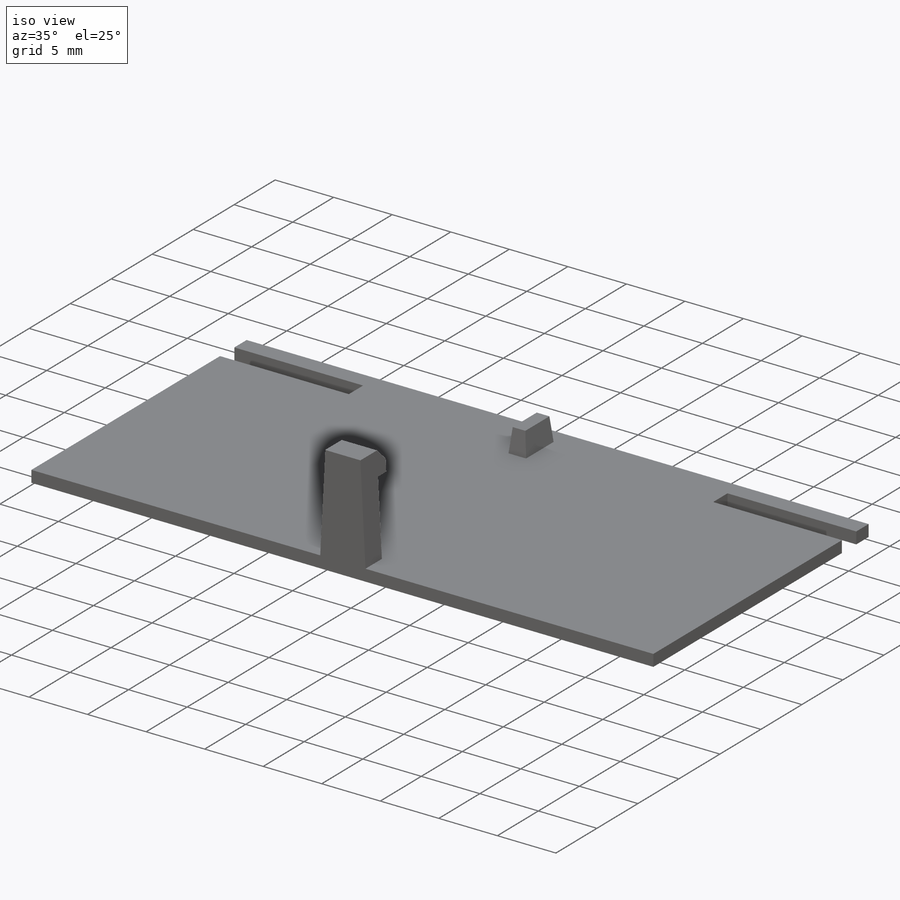
[diagram: iso view]
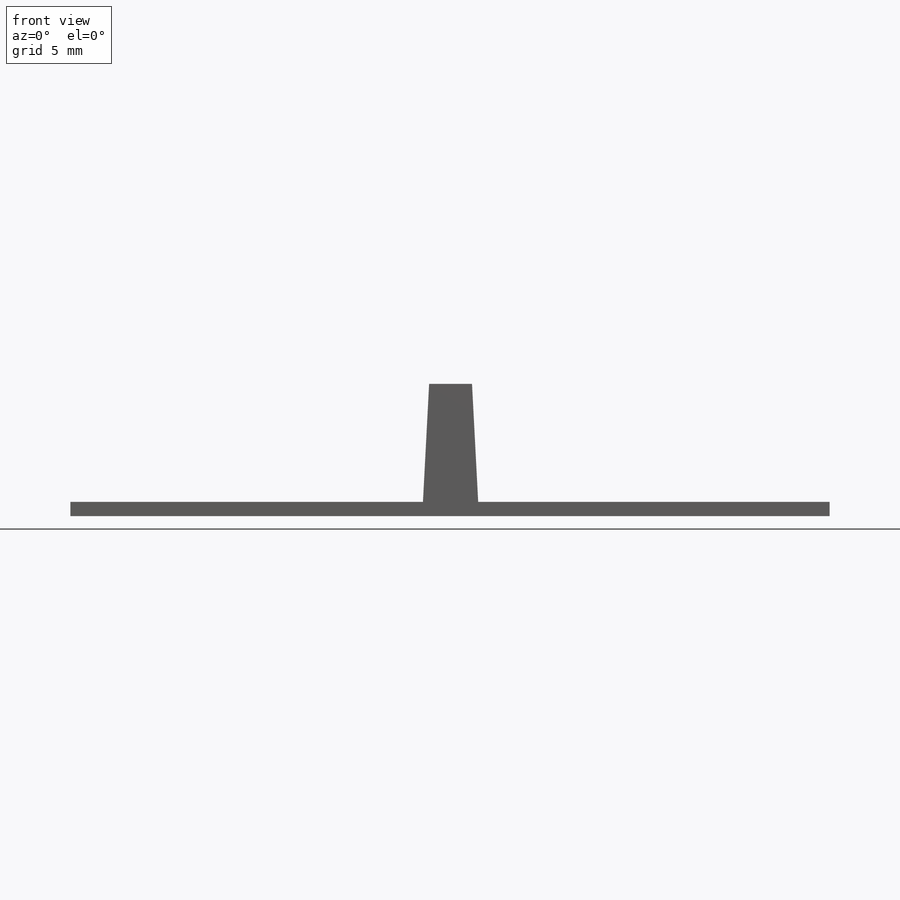
[diagram: front view]
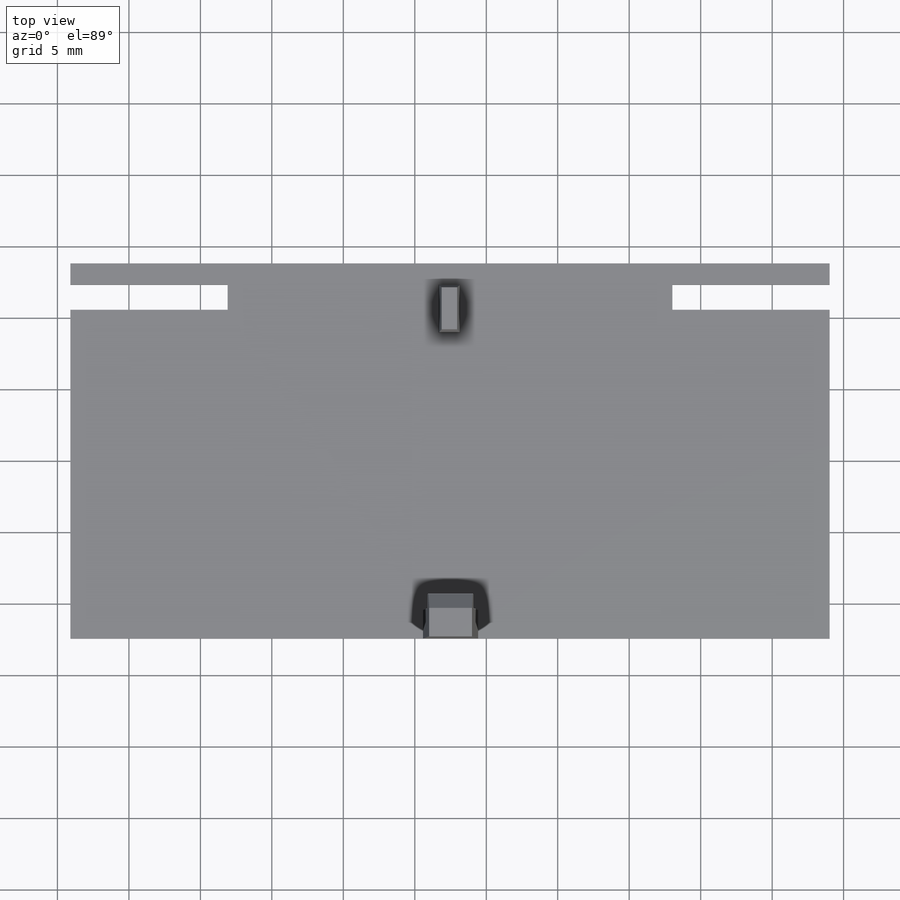
[diagram: top view]
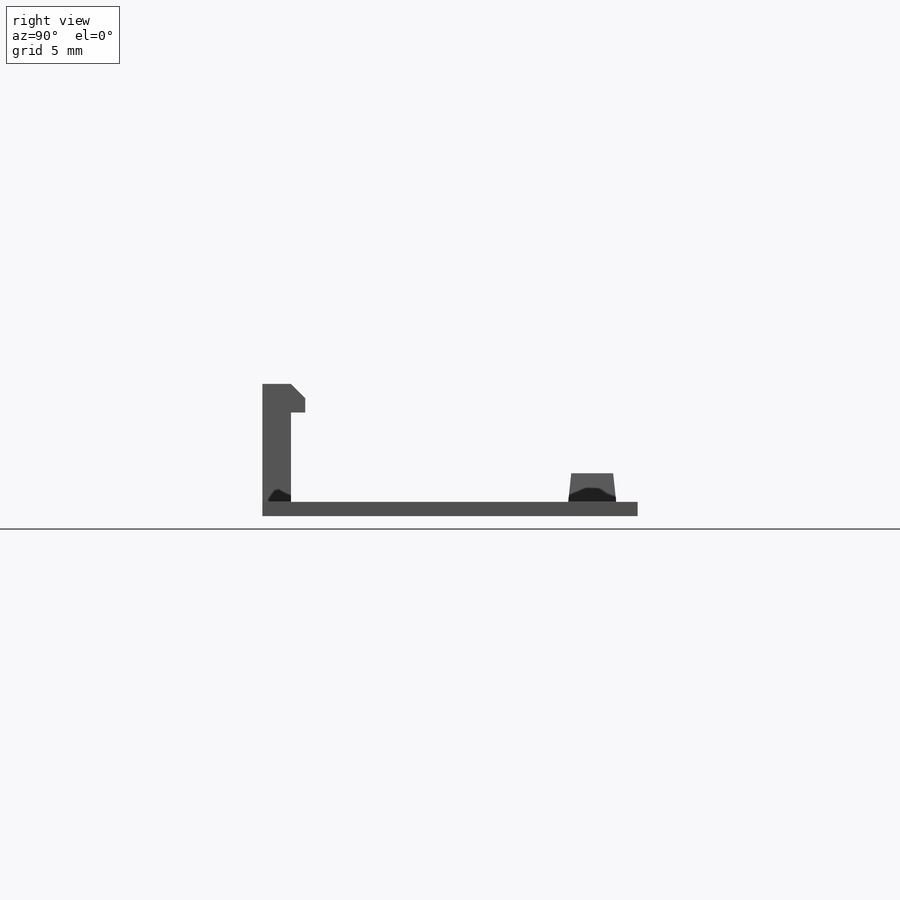
[diagram: right view]
SOLIDWORKS PART (.sldprt)
format: sldprt  version: not decoded by parser v0  size: 470,016 bytes
history: native  units: mm
features: sketch x5, extrude x2, cut_extrude x2, material x1, plane x1 (+13 scaffold rows collapsed)
feature tree (24):
  scaffold x13  (default folders/planes/origin — collapsed)
  material  "Material <not specified>"
  sketch  "Sketch1"  dims[D1=20.0mm D2=50.0mm]
  extrude  "Boss-Extrude1"  Depth=1mm
  sketch  "Sketch2"  dims[D1=0.0mm]
  extrude  "Boss-Extrude2"  Depth=2mm
  sketch  "Sketch4"  dims[D1=0.125mm D2=0.125mm BaseDepth=2.0mm TopDepth=2.0mm Width=3.0mm HookHeight=2.0mm Overhang=1.0mm BodyHeight=6.25mm Draft=3.0deg LipHeight=1.0mm]
  sketch  "Sketch5"
  cut_extrude  "Lettering"  Depth=0.25mm
  sketch  "Sketch6"  dims[c1.D1=1.25mm c1.D2=1.75mm c1.D3=~11.893863mm c1.D4=~9.893863mm c1.D5=~10.017759mm c2.D2=0.25mm c2.D1=1.0mm c3.D2=0.25mm]
  cut_extrude  "Solar Arm holes"  [1 undecoded]
  plane  "Plane1"
decode coverage: 7 of 9 modeling features carry decoded parameters
note: ~ marks probable driven/reference dimensions
note: 1 parameter value undecoded
note: suppression state not decoded; provenance and decode notes live in map.json
